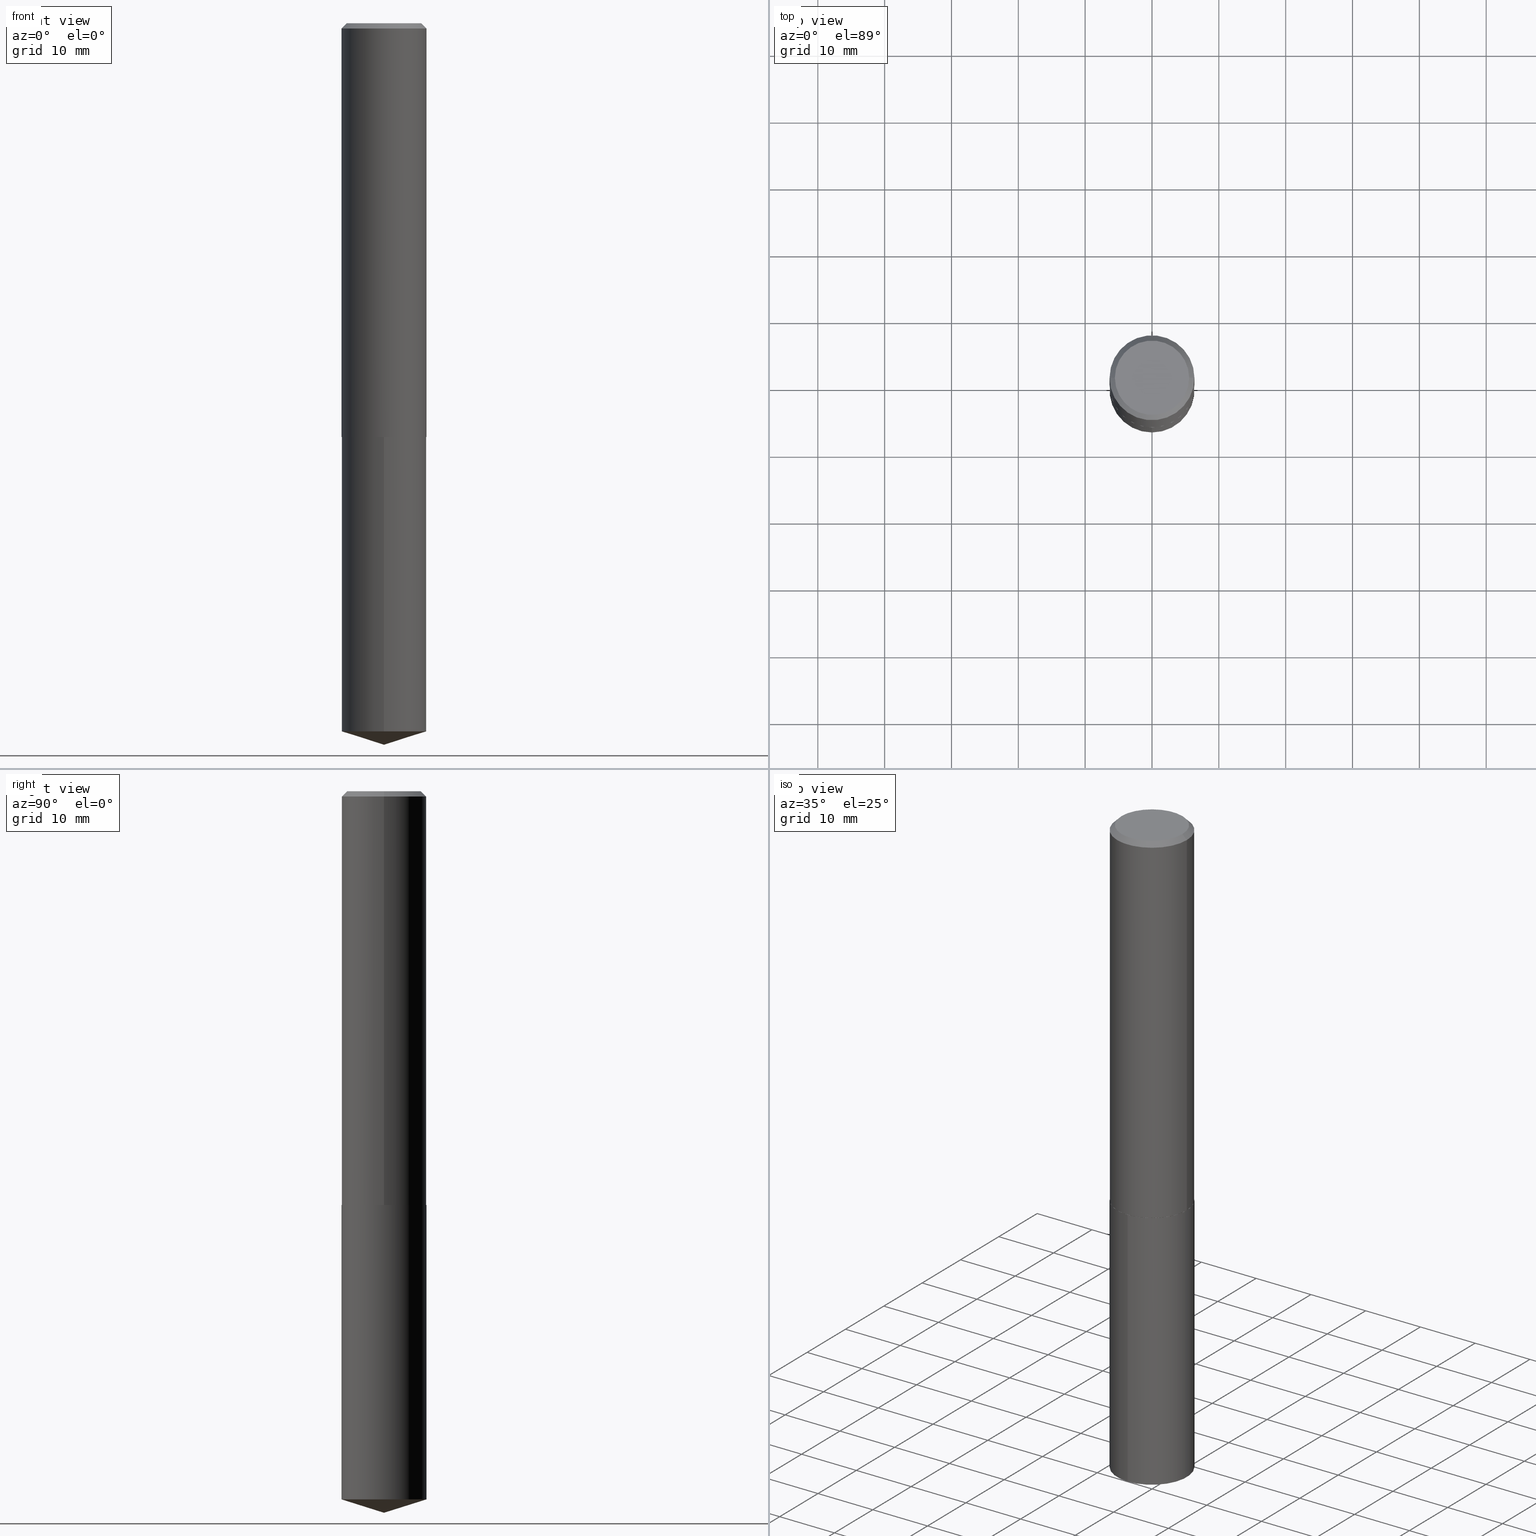
[diagram: canonical four-view strip — front | top / right | iso, engineering-drawing reading convention]
A machine part, canonical four-view strip (front | top / right | iso — engineering-drawing reading convention). The complete STEP part file that produces these views, byte-faithful:
ISO-10303-21;
HEADER;
FILE_DESCRIPTION (( 'STEP AP203' ),
    '1' );
FILE_NAME ('51363.STEP',
    '2024-04-22T18:44:52',
    ( '' ),
    ( '' ),
    'SwSTEP 2.0',
    'SolidWorks 2023',
    '' );
FILE_SCHEMA (( 'CONFIG_CONTROL_DESIGN' ));
ENDSEC;

DATA;
#1 = DIRECTION ( 'NONE',  ( -2.445705016429286457E-29, 3.491143072329270783E-15, 1.000000000000000000 ) ) ;
#2 = AXIS2_PLACEMENT_3D ( 'NONE', #130, #312, #271 ) ;
#3 = CLOSED_SHELL ( 'NONE', ( #330, #122, #383, #266, #92, #38, #108, #178 ) ) ;
#4 = DIRECTION ( 'NONE',  ( 1.000000000000000000, -6.982962677686266711E-15, 0.000000000000000000 ) ) ;
#5 = ORIENTED_EDGE ( 'NONE', *, *, #379, .F. ) ;
#6 = FACE_OUTER_BOUND ( 'NONE', #207, .T. ) ;
#7 = CARTESIAN_POINT ( 'NONE',  ( 5.960830215076271576E-29, -8.510485763430168319E-15, -2.437500000000000444 ) ) ;
#8 = APPROVAL ( #323, 'UNSPECIFIED' ) ;
#9 = AXIS2_PLACEMENT_3D ( 'NONE', #269, #45, #341 ) ;
#10 = EDGE_LOOP ( 'NONE', ( #368, #336, #144, #268 ) ) ;
#11 = DIRECTION ( 'NONE',  ( 1.000000000000000000, -6.982962677686264344E-15, 0.000000000000000000 ) ) ;
#12 = AXIS2_PLACEMENT_3D ( 'NONE', #377, #190, #246 ) ;
#13 = DIRECTION ( 'NONE',  ( 1.000000000000000000, -6.982962677686266711E-15, 0.000000000000000000 ) ) ;
#14 = ORIENTED_EDGE ( 'NONE', *, *, #349, .T. ) ;
#15 = DIRECTION ( 'NONE',  ( -6.982962677686265922E-15, -1.000000000000000000, 3.500519750498711532E-15 ) ) ;
#16 = DIRECTION ( 'NONE',  ( 6.982962677686265922E-15, 1.000000000000000000, -3.491143072329270783E-15 ) ) ;
#17 = ORIENTED_EDGE ( 'NONE', *, *, #46, .F. ) ;
#18 = CARTESIAN_POINT ( 'NONE',  ( 1.776356839400310024E-15, 0.2499999999999915068, -2.437500000000000888 ) ) ;
#19 = ADVANCED_FACE ( 'NONE', ( #31 ), #126, .T. ) ;
#20 = DIRECTION ( 'NONE',  ( 1.000000000000000000, -6.982962677686267499E-15, 4.876176775795936353E-29 ) ) ;
#21 = ORIENTED_EDGE ( 'NONE', *, *, #206, .F. ) ;
#22 = CC_DESIGN_APPROVAL ( #369, ( #94 ) ) ;
#23 =( NAMED_UNIT ( * ) PLANE_ANGLE_UNIT ( ) SI_UNIT ( $, .RADIAN. ) );
#24 = CARTESIAN_POINT ( 'NONE',  ( 1.039309479488423656E-28, -1.483900710665453895E-14, -4.250000000000000000 ) ) ;
#25 = PERSON_AND_ORGANIZATION ( #296, #91 ) ;
#26 = DIRECTION ( 'NONE',  ( 1.000000000000000000, 0.000000000000000000, 0.000000000000000000 ) ) ;
#27 = AXIS2_PLACEMENT_3D ( 'NONE', #195, #224, #16 ) ;
#28 = CONICAL_SURFACE ( 'NONE', #128, 0.2500000000000002776, 0.7853981633973801113 ) ;
#29 = APPROVAL_DATE_TIME ( #385, #360 ) ;
#30 = ORIENTED_EDGE ( 'NONE', *, *, #127, .T. ) ;
#31 = FACE_OUTER_BOUND ( 'NONE', #270, .T. ) ;
#32 = DIRECTION ( 'NONE',  ( -2.445468806185136597E-29, 3.491481338843145583E-15, 1.000000000000000000 ) ) ;
#33 = AXIS2_PLACEMENT_3D ( 'NONE', #147, #197, #348 ) ;
#34 = DIRECTION ( 'NONE',  ( 1.000000000000000000, -6.982962677686267499E-15, 4.876176775795936353E-29 ) ) ;
#35 = AXIS2_PLACEMENT_3D ( 'NONE', #162, #363, #15 ) ;
#36 = DIRECTION ( 'NONE',  ( -2.445468806185136597E-29, 3.491481338843145583E-15, 1.000000000000000000 ) ) ;
#37 =( CONVERSION_BASED_UNIT ( 'INCH', #300 ) LENGTH_UNIT ( ) NAMED_UNIT ( #276 ) );
#38 = ADVANCED_FACE ( 'NONE', ( #66 ), #182, .T. ) ;
#39 = CARTESIAN_POINT ( 'NONE',  ( 1.776356839400352622E-15, 0.2499999999999915068, -2.437500000000000888 ) ) ;
#40 = ORIENTED_EDGE ( 'NONE', *, *, #349, .F. ) ;
#41 = DIRECTION ( 'NONE',  ( -6.982962677686265922E-15, -1.000000000000000000, 3.500519750498711532E-15 ) ) ;
#42 = CARTESIAN_POINT ( 'NONE',  ( 5.959607480673178774E-29, -8.508740022760746027E-15, -2.437000000000000277 ) ) ;
#43 = ORIENTED_EDGE ( 'NONE', *, *, #264, .F. ) ;
#44 = FACE_OUTER_BOUND ( 'NONE', #100, .T. ) ;
#45 = DIRECTION ( 'NONE',  ( -2.445705016429286457E-29, 3.491143072329270783E-15, 1.000000000000000000 ) ) ;
#46 = EDGE_CURVE ( 'NONE', #279, #106, #378, .T. ) ;
#47 = EDGE_LOOP ( 'NONE', ( #204, #159, #43, #339 ) ) ;
#48 = CARTESIAN_POINT ( 'NONE',  ( -8.589392851466479922E-28, 1.226083950687317336E-13, 35.12007874015748143 ) ) ;
#49 = PLANE ( 'NONE',  #27 ) ;
#50 = ORIENTED_EDGE ( 'NONE', *, *, #213, .T. ) ;
#51 = CARTESIAN_POINT ( 'NONE',  ( -0.2500000000000000000, 1.636631877582717577E-15, -0.03125000000000021511 ) ) ;
#52 = DIRECTION ( 'NONE',  ( -0.7071067811864992780, 7.493145998870180611E-15, 0.7071067811865957564 ) ) ;
#53 = CIRCLE ( 'NONE', #98, 0.2495000000000001661 ) ;
#54 = APPROVAL_DATE_TIME ( #119, #369 ) ;
#55 = APPLICATION_CONTEXT ( 'configuration controlled 3d designs of mechanical parts and assemblies' ) ;
#56 = COORDINATED_UNIVERSAL_TIME_OFFSET ( 5, 0, .BEHIND. ) ;
#57 = VERTEX_POINT ( 'NONE', #292 ) ;
#58 = AXIS2_PLACEMENT_3D ( 'NONE', #48, #72, #41 ) ;
#59 = AXIS2_PLACEMENT_3D ( 'NONE', #89, #185, #4 ) ;
#60 = PERSON_AND_ORGANIZATION_ROLE ( 'creator' ) ;
#61 = AXIS2_PLACEMENT_3D ( 'NONE', #384, #320, #26 ) ;
#62 = EDGE_CURVE ( 'NONE', #111, #351, #99, .T. ) ;
#63 = CARTESIAN_POINT ( 'NONE',  ( -1.745740669421506724E-15, -0.2500000000000084932, -2.437499999999999112 ) ) ;
#64 = AXIS2_PLACEMENT_3D ( 'NONE', #131, #36, #34 ) ;
#65 = EDGE_CURVE ( 'NONE', #275, #149, #390, .T. ) ;
#66 = FACE_OUTER_BOUND ( 'NONE', #364, .T. ) ;
#67 = PRODUCT_DEFINITION_FORMATION_WITH_SPECIFIED_SOURCE ( 'ANY', '', #240, .NOT_KNOWN. ) ;
#68 = EDGE_LOOP ( 'NONE', ( #299, #71 ) ) ;
#69 = DIRECTION ( 'NONE',  ( -6.659769872151631300E-15, -0.9537169507482265995, 0.3007057995042744514 ) ) ;
#70 = DIRECTION ( 'NONE',  ( -6.982962677686265922E-15, -1.000000000000000000, 3.278217592397115862E-15 ) ) ;
#71 = ORIENTED_EDGE ( 'NONE', *, *, #62, .T. ) ;
#72 = DIRECTION ( 'NONE',  ( -2.445705016429286457E-29, 3.491143072329270783E-15, 1.000000000000000000 ) ) ;
#73 = FACE_OUTER_BOUND ( 'NONE', #222, .T. ) ;
#74 = LOCAL_TIME ( 14, 44, 52.00000000000000000, #254 ) ;
#75 = VERTEX_POINT ( 'NONE', #327 ) ;
#76 = LINE ( 'NONE', #340, #203 ) ;
#77 = CYLINDRICAL_SURFACE ( 'NONE', #265, 0.2500000000000000000 ) ;
#78 = ORIENTED_EDGE ( 'NONE', *, *, #357, .F. ) ;
#79 = DIRECTION ( 'NONE',  ( -2.438088387897960049E-29, 3.491481338843145188E-15, 1.000000000000000000 ) ) ;
#80 = DIRECTION ( 'NONE',  ( 6.776566513254256560E-15, 0.9537169507482285979, 0.3007057995042677900 ) ) ;
#81 = CALENDAR_DATE ( 2024, 22, 4 ) ;
#82 = DESIGN_CONTEXT ( 'detailed design', #55, 'design' ) ;
#83 = PERSON_AND_ORGANIZATION ( #296, #91 ) ;
#84 = CC_DESIGN_PERSON_AND_ORGANIZATION_ASSIGNMENT ( #387, #233, ( #94 ) ) ;
#85 = ORIENTED_EDGE ( 'NONE', *, *, #206, .T. ) ;
#86 = PERSON_AND_ORGANIZATION ( #296, #91 ) ;
#87 = EDGE_CURVE ( 'NONE', #75, #57, #214, .T. ) ;
#88 = CONICAL_SURFACE ( 'NONE', #12, 0.2500000000000000000, 0.7853981633974449483 ) ;
#89 = CARTESIAN_POINT ( 'NONE',  ( 7.642090019328603538E-31, -1.091087918388490390E-16, -0.03125000000000021511 ) ) ;
#90 = EDGE_CURVE ( 'NONE', #57, #198, #273, .T. ) ;
#91 = ORGANIZATION ( 'UNSPECIFIED', 'UNSPECIFIED', '' ) ;
#92 = ADVANCED_FACE ( 'NONE', ( #308 ), #359, .T. ) ;
#93 = CARTESIAN_POINT ( 'NONE',  ( 0.2500000000000002776, -1.025448069218231586E-14, -2.437000000000000277 ) ) ;
#94 = PRODUCT_DEFINITION ( 'UNKNOWN', '', #67, #82 ) ;
#95 = MANIFOLD_SOLID_BREP ( 'Body-Move/Copy2[2]', #3 ) ;
#96 = VERTEX_POINT ( 'NONE', #221 ) ;
#97 = CARTESIAN_POINT ( 'NONE',  ( -0.2187500000000000000, 1.582077481663294210E-15, 7.654042494660087596E-18 ) ) ;
#98 = AXIS2_PLACEMENT_3D ( 'NONE', #220, #344, #11 ) ;
#99 = CIRCLE ( 'NONE', #211, 0.2187500000000000000 ) ;
#100 = EDGE_LOOP ( 'NONE', ( #256, #302, #161 ) ) ;
#101 = DIRECTION ( 'NONE',  ( -2.445705016429286457E-29, 3.491143072329270783E-15, 1.000000000000000000 ) ) ;
#102 = CARTESIAN_POINT ( 'NONE',  ( -0.2500000000000001110, 1.776356839400251254E-15, -1.229733772563727146E-29 ) ) ;
#103 = ORIENTED_EDGE ( 'NONE', *, *, #357, .T. ) ;
#104 = LINE ( 'NONE', #18, #343 ) ;
#105 = FACE_OUTER_BOUND ( 'NONE', #333, .T. ) ;
#106 = VERTEX_POINT ( 'NONE', #113 ) ;
#107 = FACE_OUTER_BOUND ( 'NONE', #374, .T. ) ;
#108 = ADVANCED_FACE ( 'NONE', ( #199 ), #88, .T. ) ;
#109 = CARTESIAN_POINT ( 'NONE',  ( 0.2500000000000000000, -1.824233291281731991E-15, -0.03125000000000021511 ) ) ;
#110 = AXIS2_PLACEMENT_3D ( 'NONE', #381, #313, #283 ) ;
#111 = VERTEX_POINT ( 'NONE', #371 ) ;
#112 = FACE_OUTER_BOUND ( 'NONE', #47, .T. ) ;
#113 = CARTESIAN_POINT ( 'NONE',  ( -0.2500000000000000000, -2.532567567899545916E-15, -0.03125000000000021511 ) ) ;
#114 = EDGE_CURVE ( 'NONE', #106, #279, #309, .T. ) ;
#115 = CARTESIAN_POINT ( 'NONE',  ( 5.960830215076270455E-29, -8.510485763430166741E-15, -2.437500000000000000 ) ) ;
#116 = CALENDAR_DATE ( 2024, 22, 4 ) ;
#117 = PLANE ( 'NONE',  #110 ) ;
#118 = CC_DESIGN_PERSON_AND_ORGANIZATION_ASSIGNMENT ( #25, #150, ( #67 ) ) ;
#119 = DATE_AND_TIME ( #324, #358 ) ;
#120 = LOCAL_TIME ( 14, 44, 52.00000000000000000, #56 ) ;
#121 = APPROVAL_ROLE ( '' ) ;
#122 = ADVANCED_FACE ( 'NONE', ( #105 ), #140, .T. ) ;
#123 = PERSON_AND_ORGANIZATION_ROLE ( 'classification_officer' ) ;
#124 = AXIS2_PLACEMENT_3D ( 'NONE', #42, #163, #13 ) ;
#125 = EDGE_CURVE ( 'NONE', #111, #279, #227, .T. ) ;
#126 = CYLINDRICAL_SURFACE ( 'NONE', #235, 0.2500000000000000000 ) ;
#127 = EDGE_CURVE ( 'NONE', #291, #166, #242, .T. ) ;
#128 = AXIS2_PLACEMENT_3D ( 'NONE', #370, #172, #223 ) ;
#129 = CARTESIAN_POINT ( 'NONE',  ( -1.871772216193329992E-46, 2.672394653685610077E-32, 7.654042494670960626E-18 ) ) ;
#130 = CARTESIAN_POINT ( 'NONE',  ( 5.959607480673178774E-29, -8.508740022760746027E-15, -2.437000000000000277 ) ) ;
#131 = CARTESIAN_POINT ( 'NONE',  ( 0.000000000000000000, 0.000000000000000000, 0.000000000000000000 ) ) ;
#132 = ORIENTED_EDGE ( 'NONE', *, *, #274, .T. ) ;
#133 = CARTESIAN_POINT ( 'NONE',  ( 1.020088859994550091E-28, -1.456299428639980491E-14, -4.171175302780254057 ) ) ;
#134 = DIRECTION ( 'NONE',  ( -2.445468806185136597E-29, 3.491481338843145583E-15, 1.000000000000000000 ) ) ;
#135 = APPROVAL_PERSON_ORGANIZATION ( #355, #360, #285 ) ;
#136 = ORIENTED_EDGE ( 'NONE', *, *, #87, .F. ) ;
#137 = CARTESIAN_POINT ( 'NONE',  ( 0.2500000000000000000, -1.854849461260415778E-15, -0.03125000000000021511 ) ) ;
#138 = DIRECTION ( 'NONE',  ( -2.445468806185136597E-29, 3.491481338843145583E-15, 1.000000000000000000 ) ) ;
#139 = EDGE_CURVE ( 'NONE', #314, #96, #229, .T. ) ;
#140 = CYLINDRICAL_SURFACE ( 'NONE', #243, 0.2500000000000001110 ) ;
#141 = ORIENTED_EDGE ( 'NONE', *, *, #329, .T. ) ;
#142 = DIRECTION ( 'NONE',  ( 0.7071067811865451302, -7.319954787623248157E-15, -0.7071067811865499042 ) ) ;
#143 = SECURITY_CLASSIFICATION ( '', '', #260 ) ;
#144 = ORIENTED_EDGE ( 'NONE', *, *, #65, .T. ) ;
#145 = VECTOR ( 'NONE', #80, 39.37007874015748143 ) ;
#146 = PERSON_AND_ORGANIZATION_ROLE ( 'design_owner' ) ;
#147 = CARTESIAN_POINT ( 'NONE',  ( 5.959607480673178774E-29, -8.508740022760746027E-15, -2.437000000000000277 ) ) ;
#148 = CC_DESIGN_PERSON_AND_ORGANIZATION_ASSIGNMENT ( #236, #146, ( #240 ) ) ;
#149 = VERTEX_POINT ( 'NONE', #255 ) ;
#150 = PERSON_AND_ORGANIZATION_ROLE ( 'design_supplier' ) ;
#151 = DATE_AND_TIME ( #116, #120 ) ;
#152 = CONICAL_SURFACE ( 'NONE', #239, 0.2500000000000000000, 0.7853981633974449483 ) ;
#153 = DATE_TIME_ROLE ( 'creation_date' ) ;
#154 = CIRCLE ( 'NONE', #253, 0.2500000000000000000 ) ;
#155 = AXIS2_PLACEMENT_3D ( 'NONE', #298, #1, #267 ) ;
#156 = DIRECTION ( 'NONE',  ( -6.982962677686265922E-15, -1.000000000000000000, 3.278217592397115862E-15 ) ) ;
#157 = ADVANCED_FACE ( 'NONE', ( #193 ), #49, .F. ) ;
#158 = UNCERTAINTY_MEASURE_WITH_UNIT (LENGTH_MEASURE( 1.000000000000000082E-05 ), #37, 'distance_accuracy_value', 'NONE');
#159 = ORIENTED_EDGE ( 'NONE', *, *, #139, .T. ) ;
#160 = LINE ( 'NONE', #102, #262 ) ;
#161 = ORIENTED_EDGE ( 'NONE', *, *, #274, .F. ) ;
#162 = CARTESIAN_POINT ( 'NONE',  ( -8.589392851466479922E-28, 1.226083950687317336E-13, 35.12007874015748143 ) ) ;
#163 = DIRECTION ( 'NONE',  ( -2.445468806185136597E-29, 3.491481338843145583E-15, 1.000000000000000000 ) ) ;
#164 = LOCAL_TIME ( 14, 44, 52.00000000000000000, #326 ) ;
#165 = ADVANCED_FACE ( 'NONE', ( #73 ), #77, .T. ) ;
#166 = VERTEX_POINT ( 'NONE', #173 ) ;
#167 = DIRECTION ( 'NONE',  ( -2.445468806185136597E-29, 3.491481338843145583E-15, 1.000000000000000000 ) ) ;
#168 = EDGE_LOOP ( 'NONE', ( #282, #50 ) ) ;
#169 = DIRECTION ( 'NONE',  ( 2.445468806185136597E-29, -3.491481338843145583E-15, -1.000000000000000000 ) ) ;
#170 = DIRECTION ( 'NONE',  ( 1.000000000000000000, -6.982962677686266711E-15, 4.876133991931148155E-29 ) ) ;
#171 = ORIENTED_EDGE ( 'NONE', *, *, #46, .T. ) ;
#172 = DIRECTION ( 'NONE',  ( -2.445468806185136597E-29, 3.491481338843145583E-15, 1.000000000000000000 ) ) ;
#173 = CARTESIAN_POINT ( 'NONE',  ( 1.776356839400351439E-15, 0.2499999999999853728, -4.171175302780255834 ) ) ;
#174 = AXIS2_PLACEMENT_3D ( 'NONE', #7, #134, #338 ) ;
#175 = ORIENTED_EDGE ( 'NONE', *, *, #90, .F. ) ;
#176 = APPLICATION_PROTOCOL_DEFINITION ( 'international standard', 'config_control_design', 1994, #287 ) ;
#177 = APPROVAL_ROLE ( '' ) ;
#178 = ADVANCED_FACE ( 'NONE', ( #304 ), #117, .F. ) ;
#179 = CC_DESIGN_APPROVAL ( #360, ( #67 ) ) ;
#180 = APPROVAL_STATUS ( 'not_yet_approved' ) ;
#181 = CALENDAR_DATE ( 2024, 22, 4 ) ;
#182 = CYLINDRICAL_SURFACE ( 'NONE', #64, 0.2500000000000001110 ) ;
#183 = AXIS2_PLACEMENT_3D ( 'NONE', #278, #167, #170 ) ;
#184 = EDGE_CURVE ( 'NONE', #291, #75, #232, .T. ) ;
#185 = DIRECTION ( 'NONE',  ( -2.445468806185136597E-29, 3.491481338843145583E-15, 1.000000000000000000 ) ) ;
#186 = VECTOR ( 'NONE', #69, 39.37007874015748143 ) ;
#187 = VECTOR ( 'NONE', #263, 39.37007874015748143 ) ;
#188 = ORIENTED_EDGE ( 'NONE', *, *, #258, .F. ) ;
#189 =( LENGTH_UNIT ( ) NAMED_UNIT ( * ) SI_UNIT ( $, .METRE. ) );
#190 = DIRECTION ( 'NONE',  ( 2.445468806185136597E-29, -3.491481338843145583E-15, -1.000000000000000000 ) ) ;
#191 = ORIENTED_EDGE ( 'NONE', *, *, #237, .F. ) ;
#192 = CARTESIAN_POINT ( 'NONE',  ( 7.642090019328603538E-31, -1.091087918388490390E-16, -0.03125000000000021511 ) ) ;
#193 = FACE_OUTER_BOUND ( 'NONE', #168, .T. ) ;
#194 = ORIENTED_EDGE ( 'NONE', *, *, #264, .T. ) ;
#195 = CARTESIAN_POINT ( 'NONE',  ( 4.100881938441478226E-29, -1.117403755725282510E-14, -2.437500000000000000 ) ) ;
#196 = CIRCLE ( 'NONE', #174, 0.2495000000000001661 ) ;
#197 = DIRECTION ( 'NONE',  ( -2.445468806185136597E-29, 3.491481338843145583E-15, 1.000000000000000000 ) ) ;
#198 = VERTEX_POINT ( 'NONE', #39 ) ;
#199 = FACE_OUTER_BOUND ( 'NONE', #346, .T. ) ;
#200 = ORIENTED_EDGE ( 'NONE', *, *, #295, .F. ) ;
#201 = COORDINATED_UNIVERSAL_TIME_OFFSET ( 5, 0, .BEHIND. ) ;
#202 = ADVANCED_BREP_SHAPE_REPRESENTATION ( '51363', ( #231, #95, #61 ), #297 ) ;
#203 = VECTOR ( 'NONE', #280, 39.37007874015748143 ) ;
#204 = ORIENTED_EDGE ( 'NONE', *, *, #258, .T. ) ;
#205 = PERSON_AND_ORGANIZATION ( #296, #91 ) ;
#206 = EDGE_CURVE ( 'NONE', #96, #106, #160, .T. ) ;
#207 = EDGE_LOOP ( 'NONE', ( #342, #30, #322 ) ) ;
#208 = MECHANICAL_CONTEXT ( 'NONE', #287, 'mechanical' ) ;
#209 = CIRCLE ( 'NONE', #9, 0.2500000000000000000 ) ;
#210 =( NAMED_UNIT ( * ) SI_UNIT ( $, .STERADIAN. ) SOLID_ANGLE_UNIT ( ) );
#211 = AXIS2_PLACEMENT_3D ( 'NONE', #129, #32, #361 ) ;
#212 = CC_DESIGN_APPROVAL ( #8, ( #143 ) ) ;
#213 = EDGE_CURVE ( 'NONE', #198, #57, #209, .T. ) ;
#214 = LINE ( 'NONE', #63, #319 ) ;
#215 = ORIENTED_EDGE ( 'NONE', *, *, #379, .T. ) ;
#216 = DIRECTION ( 'NONE',  ( -2.445705016429286457E-29, 3.491143072329270783E-15, 1.000000000000000000 ) ) ;
#217 = AXIS2_PLACEMENT_3D ( 'NONE', #334, #101, #307 ) ;
#218 = ORIENTED_EDGE ( 'NONE', *, *, #62, .F. ) ;
#219 = PRODUCT_RELATED_PRODUCT_CATEGORY ( 'detail', '', ( #240 ) ) ;
#220 = CARTESIAN_POINT ( 'NONE',  ( 5.960830215076271576E-29, -8.510485763430168319E-15, -2.437500000000000444 ) ) ;
#221 = CARTESIAN_POINT ( 'NONE',  ( -0.2500000000000002776, -6.732383183360494773E-15, -2.437000000000000277 ) ) ;
#222 = EDGE_LOOP ( 'NONE', ( #141, #103, #175, #136 ) ) ;
#223 = DIRECTION ( 'NONE',  ( 1.000000000000000000, -6.982962677686266711E-15, 0.000000000000000000 ) ) ;
#224 = DIRECTION ( 'NONE',  ( 2.445705016429286177E-29, -3.491143072329270783E-15, -1.000000000000000000 ) ) ;
#225 = ORIENTED_EDGE ( 'NONE', *, *, #125, .F. ) ;
#226 = CARTESIAN_POINT ( 'NONE',  ( 0.2495000000000001661, -1.025273495151289357E-14, -2.437500000000000444 ) ) ;
#227 = LINE ( 'NONE', #109, #294 ) ;
#228 = ORIENTED_EDGE ( 'NONE', *, *, #213, .F. ) ;
#229 = LINE ( 'NONE', #345, #354 ) ;
#230 = APPROVAL_DATE_TIME ( #288, #8 ) ;
#231 = MANIFOLD_SOLID_BREP ( 'Body-Move/Copy2[1]', #335 ) ;
#232 = LINE ( 'NONE', #24, #186 ) ;
#233 = PERSON_AND_ORGANIZATION_ROLE ( 'creator' ) ;
#234 = CIRCLE ( 'NONE', #2, 0.2500000000000002776 ) ;
#235 = AXIS2_PLACEMENT_3D ( 'NONE', #115, #365, #156 ) ;
#236 = PERSON_AND_ORGANIZATION ( #296, #91 ) ;
#237 = EDGE_CURVE ( 'NONE', #351, #111, #325, .T. ) ;
#238 = PRODUCT_DEFINITION_SHAPE ( 'NONE', 'NONE',  #94 ) ;
#239 = AXIS2_PLACEMENT_3D ( 'NONE', #192, #169, #303 ) ;
#240 = PRODUCT ( '51363', '51363', '', ( #208 ) ) ;
#241 = AXIS2_PLACEMENT_3D ( 'NONE', #281, #138, #301 ) ;
#242 = LINE ( 'NONE', #252, #145 ) ;
#243 = AXIS2_PLACEMENT_3D ( 'NONE', #250, #373, #20 ) ;
#244 = ORIENTED_EDGE ( 'NONE', *, *, #114, .F. ) ;
#245 = DIRECTION ( 'NONE',  ( -0.7071067811865451302, 2.468850131082231817E-15, -0.7071067811865499042 ) ) ;
#246 = DIRECTION ( 'NONE',  ( -1.000000000000000000, 6.982962677686266711E-15, 0.000000000000000000 ) ) ;
#247 = ORIENTED_EDGE ( 'NONE', *, *, #289, .T. ) ;
#248 = DIRECTION ( 'NONE',  ( 1.000000000000000000, -6.982962677686265922E-15, 4.876176775795935793E-29 ) ) ;
#249 = CC_DESIGN_DATE_AND_TIME_ASSIGNMENT ( #290, #153, ( #94 ) ) ;
#250 = CARTESIAN_POINT ( 'NONE',  ( 0.000000000000000000, 0.000000000000000000, 0.000000000000000000 ) ) ;
#251 = ORIENTED_EDGE ( 'NONE', *, *, #87, .T. ) ;
#252 = CARTESIAN_POINT ( 'NONE',  ( 1.039425641733892730E-28, -1.483735805739939905E-14, -4.250000000000000000 ) ) ;
#253 = AXIS2_PLACEMENT_3D ( 'NONE', #133, #337, #372 ) ;
#254 = COORDINATED_UNIVERSAL_TIME_OFFSET ( 5, 0, .BEHIND. ) ;
#255 = CARTESIAN_POINT ( 'NONE',  ( 0.2500000000000002776, -1.025448069218231586E-14, -2.437000000000000277 ) ) ;
#256 = ORIENTED_EDGE ( 'NONE', *, *, #127, .F. ) ;
#257 = CALENDAR_DATE ( 2024, 22, 4 ) ;
#258 = EDGE_CURVE ( 'NONE', #275, #314, #196, .T. ) ;
#259 = CC_DESIGN_SECURITY_CLASSIFICATION ( #143, ( #67 ) ) ;
#260 = SECURITY_CLASSIFICATION_LEVEL ( 'unclassified' ) ;
#261 = CC_DESIGN_PERSON_AND_ORGANIZATION_ASSIGNMENT ( #86, #60, ( #67 ) ) ;
#262 = VECTOR ( 'NONE', #272, 39.37007874015748143 ) ;
#263 = DIRECTION ( 'NONE',  ( 0.7071067811864992780, -2.468850131081751401E-15, 0.7071067811865957564 ) ) ;
#264 = EDGE_CURVE ( 'NONE', #149, #96, #306, .T. ) ;
#265 = AXIS2_PLACEMENT_3D ( 'NONE', #367, #316, #70 ) ;
#266 = ADVANCED_FACE ( 'NONE', ( #388 ), #366, .F. ) ;
#267 = DIRECTION ( 'NONE',  ( -6.982962677686265922E-15, -1.000000000000000000, 3.278217592397115862E-15 ) ) ;
#268 = ORIENTED_EDGE ( 'NONE', *, *, #289, .F. ) ;
#269 = CARTESIAN_POINT ( 'NONE',  ( 5.960830215076270455E-29, -8.510485763430168319E-15, -2.437500000000000000 ) ) ;
#270 = EDGE_LOOP ( 'NONE', ( #78, #132, #251, #228 ) ) ;
#271 = DIRECTION ( 'NONE',  ( 1.000000000000000000, -6.982962677686266711E-15, 0.000000000000000000 ) ) ;
#272 = DIRECTION ( 'NONE',  ( -2.445468806185136877E-29, 3.491481338843145188E-15, 1.000000000000000000 ) ) ;
#273 = CIRCLE ( 'NONE', #155, 0.2500000000000000000 ) ;
#274 = EDGE_CURVE ( 'NONE', #166, #75, #389, .T. ) ;
#275 = VERTEX_POINT ( 'NONE', #226 ) ;
#276 = DIMENSIONAL_EXPONENTS ( 1.000000000000000000, 0.000000000000000000, 0.000000000000000000, 0.000000000000000000, 0.000000000000000000, 0.000000000000000000, 0.000000000000000000 ) ;
#277 = CARTESIAN_POINT ( 'NONE',  ( 4.097154587185700935E-29, -1.117937533639875992E-14, -2.437500000000000444 ) ) ;
#278 = CARTESIAN_POINT ( 'NONE',  ( -1.871772216193329992E-46, 2.672394653685610077E-32, 7.654042494670960626E-18 ) ) ;
#279 = VERTEX_POINT ( 'NONE', #137 ) ;
#280 = DIRECTION ( 'NONE',  ( -2.445468806185136877E-29, 3.491481338843145188E-15, 1.000000000000000000 ) ) ;
#281 = CARTESIAN_POINT ( 'NONE',  ( 7.642090019328603538E-31, -1.091087918388490390E-16, -0.03125000000000021511 ) ) ;
#282 = ORIENTED_EDGE ( 'NONE', *, *, #90, .T. ) ;
#283 = DIRECTION ( 'NONE',  ( -1.000000000000000000, 6.982962677686265922E-15, -4.876176775795935793E-29 ) ) ;
#284 = VECTOR ( 'NONE', #245, 39.37007874015748143 ) ;
#285 = APPROVAL_ROLE ( '' ) ;
#286 = APPLICATION_PROTOCOL_DEFINITION ( 'international standard', 'config_control_design', 1994, #55 ) ;
#287 = APPLICATION_CONTEXT ( 'configuration controlled 3d designs of mechanical parts and assemblies' ) ;
#288 = DATE_AND_TIME ( #181, #164 ) ;
#289 = EDGE_CURVE ( 'NONE', #96, #149, #234, .T. ) ;
#290 = DATE_AND_TIME ( #81, #74 ) ;
#291 = VERTEX_POINT ( 'NONE', #347 ) ;
#292 = CARTESIAN_POINT ( 'NONE',  ( -1.745740669421506724E-15, -0.2500000000000084932, -2.437499999999999556 ) ) ;
#293 = APPROVAL_PERSON_ORGANIZATION ( #382, #369, #121 ) ;
#294 = VECTOR ( 'NONE', #142, 39.37007874015748143 ) ;
#295 = EDGE_CURVE ( 'NONE', #314, #275, #53, .T. ) ;
#296 = PERSON ( 'UNSPECIFIED', 'UNSPECIFIED', 'UNSPECIFIED', ('UNSPECIFIED'), ('UNSPECIFIED'), ('UNSPECIFIED') ) ;
#297 =( GEOMETRIC_REPRESENTATION_CONTEXT ( 3 ) GLOBAL_UNCERTAINTY_ASSIGNED_CONTEXT ( ( #158 ) ) GLOBAL_UNIT_ASSIGNED_CONTEXT ( ( #37, #23, #210 ) ) REPRESENTATION_CONTEXT ( 'NONE', 'WORKASPACE' ) );
#298 = CARTESIAN_POINT ( 'NONE',  ( 5.960830215076270455E-29, -8.510485763430168319E-15, -2.437500000000000000 ) ) ;
#299 = ORIENTED_EDGE ( 'NONE', *, *, #237, .T. ) ;
#300 = LENGTH_MEASURE_WITH_UNIT ( LENGTH_MEASURE( 0.02539999999999999897 ), #189 );
#301 = DIRECTION ( 'NONE',  ( 1.000000000000000000, -6.982962677686266711E-15, 0.000000000000000000 ) ) ;
#302 = ORIENTED_EDGE ( 'NONE', *, *, #184, .T. ) ;
#303 = DIRECTION ( 'NONE',  ( -1.000000000000000000, 6.982962677686266711E-15, 0.000000000000000000 ) ) ;
#304 = FACE_OUTER_BOUND ( 'NONE', #68, .T. ) ;
#305 = EDGE_LOOP ( 'NONE', ( #188, #200 ) ) ;
#306 = CIRCLE ( 'NONE', #124, 0.2500000000000002776 ) ;
#307 = DIRECTION ( 'NONE',  ( -6.982962677686265922E-15, -1.000000000000000000, 4.370956789862821150E-15 ) ) ;
#308 = FACE_OUTER_BOUND ( 'NONE', #10, .T. ) ;
#309 = CIRCLE ( 'NONE', #241, 0.2500000000000000000 ) ;
#310 = CC_DESIGN_DATE_AND_TIME_ASSIGNMENT ( #151, #356, ( #143 ) ) ;
#311 = ORIENTED_EDGE ( 'NONE', *, *, #114, .T. ) ;
#312 = DIRECTION ( 'NONE',  ( -2.445468806185136597E-29, 3.491481338843145583E-15, 1.000000000000000000 ) ) ;
#313 = DIRECTION ( 'NONE',  ( 2.438088387897960049E-29, -3.491481338843145188E-15, -1.000000000000000000 ) ) ;
#314 = VERTEX_POINT ( 'NONE', #376 ) ;
#315 = LINE ( 'NONE', #51, #284 ) ;
#316 = DIRECTION ( 'NONE',  ( -2.445705016429286457E-29, 3.491143072329270783E-15, 1.000000000000000000 ) ) ;
#317 = ADVANCED_FACE ( 'NONE', ( #6 ), #318, .T. ) ;
#318 = CONICAL_SURFACE ( 'NONE', #58, 124.8659371009148060, 1.265363707695891016 ) ;
#319 = VECTOR ( 'NONE', #331, 39.37007874015748143 ) ;
#320 = DIRECTION ( 'NONE',  ( 0.000000000000000000, 0.000000000000000000, 1.000000000000000000 ) ) ;
#321 = ADVANCED_FACE ( 'NONE', ( #44 ), #332, .T. ) ;
#322 = ORIENTED_EDGE ( 'NONE', *, *, #329, .F. ) ;
#323 = APPROVAL_STATUS ( 'not_yet_approved' ) ;
#324 = CALENDAR_DATE ( 2024, 22, 4 ) ;
#325 = CIRCLE ( 'NONE', #183, 0.2187500000000000000 ) ;
#326 = COORDINATED_UNIVERSAL_TIME_OFFSET ( 5, 0, .BEHIND. ) ;
#327 = CARTESIAN_POINT ( 'NONE',  ( -1.745740669421464126E-15, -0.2500000000000144884, -4.171175302780253169 ) ) ;
#328 = APPROVAL_PERSON_ORGANIZATION ( #205, #8, #177 ) ;
#329 = EDGE_CURVE ( 'NONE', #75, #166, #154, .T. ) ;
#330 = ADVANCED_FACE ( 'NONE', ( #107 ), #152, .T. ) ;
#331 = DIRECTION ( 'NONE',  ( -2.445705016429286457E-29, 3.491143072329270783E-15, 1.000000000000000000 ) ) ;
#332 = CONICAL_SURFACE ( 'NONE', #35, 124.8659371009148060, 1.265363707695891016 ) ;
#333 = EDGE_LOOP ( 'NONE', ( #194, #85, #17, #5 ) ) ;
#334 = CARTESIAN_POINT ( 'NONE',  ( 1.020088859994550091E-28, -1.456299428639980491E-14, -4.171175302780254057 ) ) ;
#335 = CLOSED_SHELL ( 'NONE', ( #165, #317, #321, #19, #157 ) ) ;
#336 = ORIENTED_EDGE ( 'NONE', *, *, #295, .T. ) ;
#337 = DIRECTION ( 'NONE',  ( -2.445705016429286457E-29, 3.491143072329270783E-15, 1.000000000000000000 ) ) ;
#338 = DIRECTION ( 'NONE',  ( 1.000000000000000000, -6.982962677686264344E-15, 0.000000000000000000 ) ) ;
#339 = ORIENTED_EDGE ( 'NONE', *, *, #65, .F. ) ;
#340 = CARTESIAN_POINT ( 'NONE',  ( 0.2500000000000001110, -1.745740669421567664E-15, 1.219044193948984649E-29 ) ) ;
#341 = DIRECTION ( 'NONE',  ( -6.982962677686265922E-15, -1.000000000000000000, 3.278217592397115862E-15 ) ) ;
#342 = ORIENTED_EDGE ( 'NONE', *, *, #184, .F. ) ;
#343 = VECTOR ( 'NONE', #216, 39.37007874015748143 ) ;
#344 = DIRECTION ( 'NONE',  ( -2.445468806185136597E-29, 3.491481338843145583E-15, 1.000000000000000000 ) ) ;
#345 = CARTESIAN_POINT ( 'NONE',  ( -0.2500000000000002776, -6.732383183360494773E-15, -2.437000000000000277 ) ) ;
#346 = EDGE_LOOP ( 'NONE', ( #225, #191, #14, #311 ) ) ;
#347 = CARTESIAN_POINT ( 'NONE',  ( 1.039424631982446779E-28, -1.483735805739939905E-14, -4.250000000000000000 ) ) ;
#348 = DIRECTION ( 'NONE',  ( 1.000000000000000000, -6.982962677686266711E-15, 0.000000000000000000 ) ) ;
#349 = EDGE_CURVE ( 'NONE', #351, #106, #315, .T. ) ;
#350 = SHAPE_DEFINITION_REPRESENTATION ( #238, #202 ) ;
#351 = VERTEX_POINT ( 'NONE', #97 ) ;
#352 = COORDINATED_UNIVERSAL_TIME_OFFSET ( 5, 0, .BEHIND. ) ;
#353 = LOCAL_TIME ( 14, 44, 52.00000000000000000, #352 ) ;
#354 = VECTOR ( 'NONE', #52, 39.37007874015748143 ) ;
#355 = PERSON_AND_ORGANIZATION ( #296, #91 ) ;
#356 = DATE_TIME_ROLE ( 'classification_date' ) ;
#357 = EDGE_CURVE ( 'NONE', #166, #198, #104, .T. ) ;
#358 = LOCAL_TIME ( 14, 44, 52.00000000000000000, #201 ) ;
#359 = CONICAL_SURFACE ( 'NONE', #33, 0.2500000000000002776, 0.7853981633973801113 ) ;
#360 = APPROVAL ( #380, 'UNSPECIFIED' ) ;
#361 = DIRECTION ( 'NONE',  ( 1.000000000000000000, -6.982962677686266711E-15, 4.876133991931148155E-29 ) ) ;
#362 = ORIENTED_EDGE ( 'NONE', *, *, #125, .T. ) ;
#363 = DIRECTION ( 'NONE',  ( -2.445705016429286457E-29, 3.491143072329270783E-15, 1.000000000000000000 ) ) ;
#364 = EDGE_LOOP ( 'NONE', ( #21, #247, #215, #244 ) ) ;
#365 = DIRECTION ( 'NONE',  ( -2.445705016429286457E-29, 3.491143072329270783E-15, 1.000000000000000000 ) ) ;
#366 = PLANE ( 'NONE',  #375 ) ;
#367 = CARTESIAN_POINT ( 'NONE',  ( 5.960830215076270455E-29, -8.510485763430166741E-15, -2.437500000000000000 ) ) ;
#368 = ORIENTED_EDGE ( 'NONE', *, *, #139, .F. ) ;
#369 = APPROVAL ( #180, 'UNSPECIFIED' ) ;
#370 = CARTESIAN_POINT ( 'NONE',  ( 5.959607480673178774E-29, -8.508740022760746027E-15, -2.437000000000000277 ) ) ;
#371 = CARTESIAN_POINT ( 'NONE',  ( 0.2187500000000000000, -1.662483614147127260E-15, 7.654042494682115613E-18 ) ) ;
#372 = DIRECTION ( 'NONE',  ( -6.982962677686265922E-15, -1.000000000000000000, 4.370956789862821150E-15 ) ) ;
#373 = DIRECTION ( 'NONE',  ( -2.445468806185136597E-29, 3.491481338843145583E-15, 1.000000000000000000 ) ) ;
#374 = EDGE_LOOP ( 'NONE', ( #218, #362, #171, #40 ) ) ;
#375 = AXIS2_PLACEMENT_3D ( 'NONE', #277, #79, #248 ) ;
#376 = CARTESIAN_POINT ( 'NONE',  ( -0.2495000000000001661, -6.735032410534606763E-15, -2.437500000000000444 ) ) ;
#377 = CARTESIAN_POINT ( 'NONE',  ( 7.642090019328603538E-31, -1.091087918388490390E-16, -0.03125000000000021511 ) ) ;
#378 = CIRCLE ( 'NONE', #59, 0.2500000000000000000 ) ;
#379 = EDGE_CURVE ( 'NONE', #149, #279, #76, .T. ) ;
#380 = APPROVAL_STATUS ( 'not_yet_approved' ) ;
#381 = CARTESIAN_POINT ( 'NONE',  ( -9.358861080966649959E-47, 1.336197326842805038E-32, 3.827021247335480313E-18 ) ) ;
#382 = PERSON_AND_ORGANIZATION ( #296, #91 ) ;
#383 = ADVANCED_FACE ( 'NONE', ( #112 ), #28, .T. ) ;
#384 = CARTESIAN_POINT ( 'NONE',  ( 0.000000000000000000, 0.000000000000000000, 0.000000000000000000 ) ) ;
#385 = DATE_AND_TIME ( #257, #353 ) ;
#386 = CC_DESIGN_PERSON_AND_ORGANIZATION_ASSIGNMENT ( #83, #123, ( #143 ) ) ;
#387 = PERSON_AND_ORGANIZATION ( #296, #91 ) ;
#388 = FACE_OUTER_BOUND ( 'NONE', #305, .T. ) ;
#389 = CIRCLE ( 'NONE', #217, 0.2500000000000000000 ) ;
#390 = LINE ( 'NONE', #93, #187 ) ;
ENDSEC;
END-ISO-10303-21;
